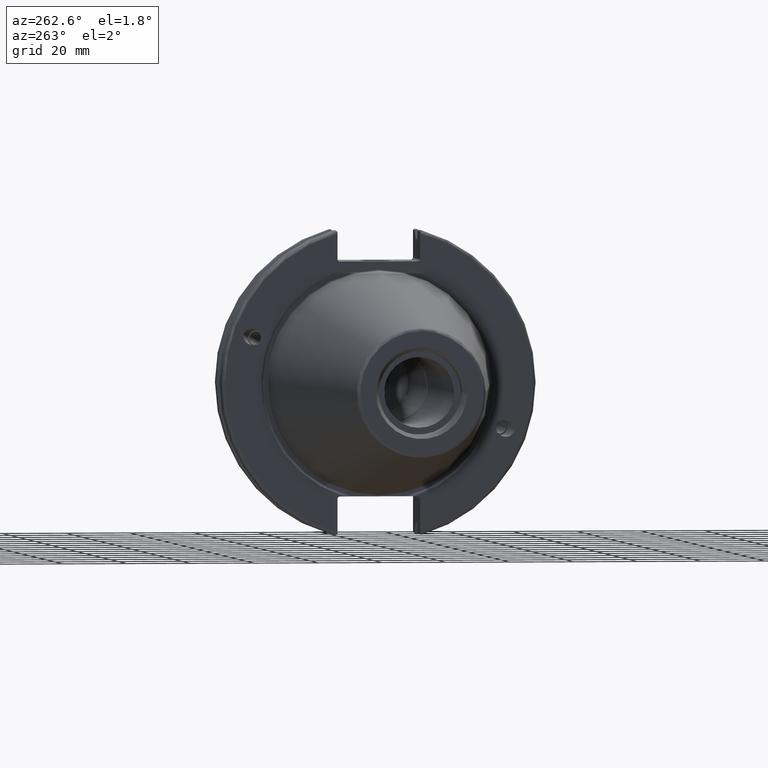
[diagram: clean part render]
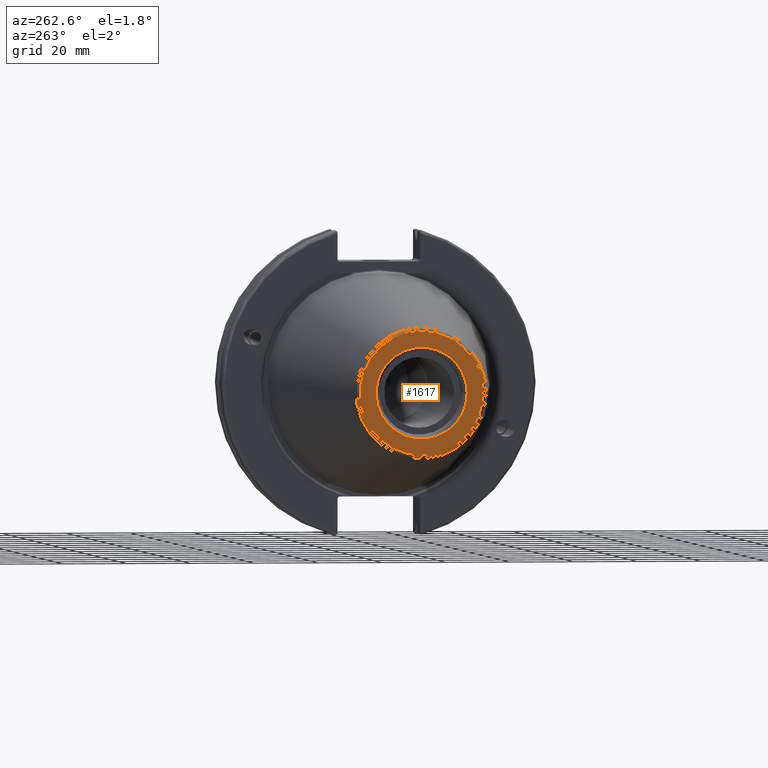
[diagram: same view with one face highlighted and labeled with its STEP entity id]
A machine part, auxiliary view. The second image highlights one B-rep face of the part: STEP entity #1617.
In plain terms, the highlighted planar face has unit normal (-1, 0, 0).
Its self-contained STEP definition (entity closure, byte-faithful):
#53=PLANE('',#1799);
#96=FACE_BOUND('',#340,.T.);
#231=FACE_OUTER_BOUND('',#339,.T.);
#339=EDGE_LOOP('',(#1388));
#340=EDGE_LOOP('',(#1389));
#635=CIRCLE('',#1798,19.2435889303637);
#636=CIRCLE('',#1800,14.2875);
#798=VERTEX_POINT('',#3177);
#799=VERTEX_POINT('',#3181);
#1013=EDGE_CURVE('',#798,#798,#635,.T.);
#1014=EDGE_CURVE('',#799,#799,#636,.T.);
#1388=ORIENTED_EDGE('',*,*,#1013,.F.);
#1389=ORIENTED_EDGE('',*,*,#1014,.T.);
#1617=ADVANCED_FACE('',(#231,#96),#53,.T.);
#1798=AXIS2_PLACEMENT_3D('',#3179,#2178,#2179);
#1799=AXIS2_PLACEMENT_3D('',#3180,#2180,#2181);
#1800=AXIS2_PLACEMENT_3D('',#3182,#2182,#2183);
#2178=DIRECTION('center_axis',(1.,0.,0.));
#2179=DIRECTION('ref_axis',(0.,-1.,1.83697019872103E-16));
#2180=DIRECTION('center_axis',(-1.,0.,0.));
#2181=DIRECTION('ref_axis',(0.,0.,1.));
#2182=DIRECTION('center_axis',(1.,0.,0.));
#2183=DIRECTION('ref_axis',(0.,0.,-1.));
#3177=CARTESIAN_POINT('',(-101.6,-2.35665995876774E-15,19.2435889303637));
#3179=CARTESIAN_POINT('Origin',(-101.6,0.,0.));
#3180=CARTESIAN_POINT('Origin',(-101.6,20.1083333333333,0.));
#3181=CARTESIAN_POINT('',(-101.6,-14.2875,-1.74971411428178E-15));
#3182=CARTESIAN_POINT('Origin',(-101.6,0.,0.));